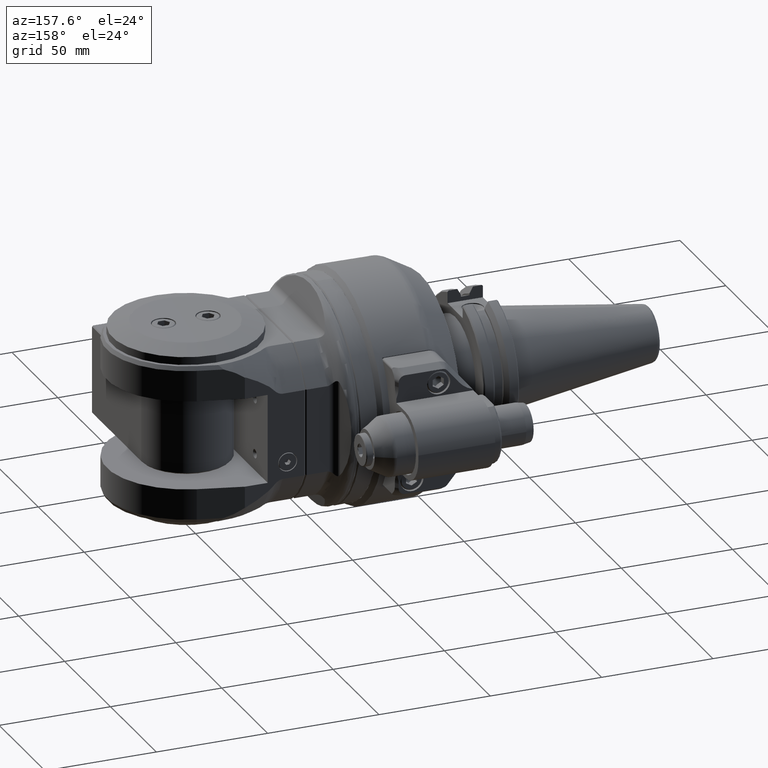
[diagram: clean part render]
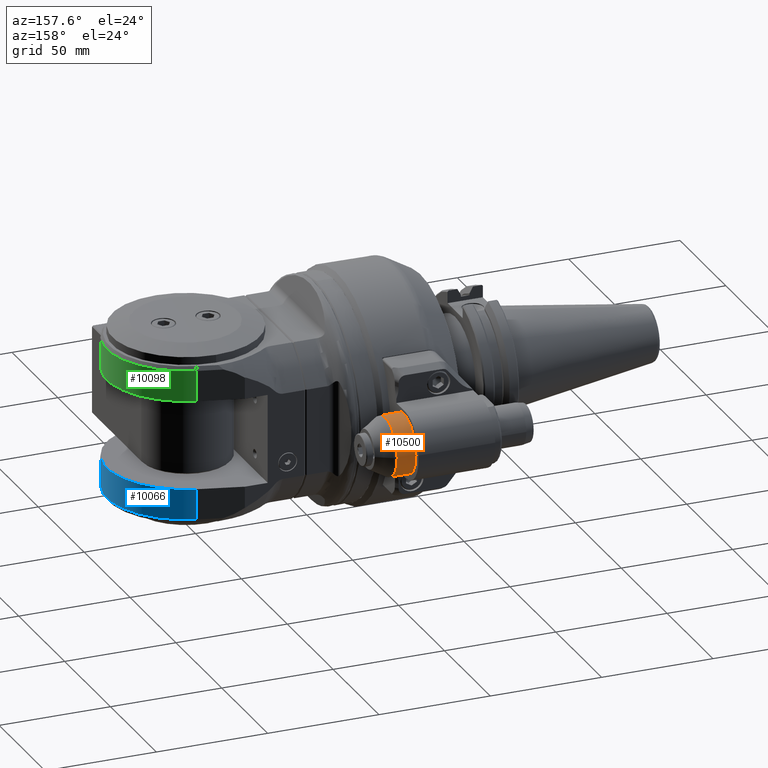
[diagram: same view with three faces highlighted in distinct colors, each labeled with its STEP entity id]
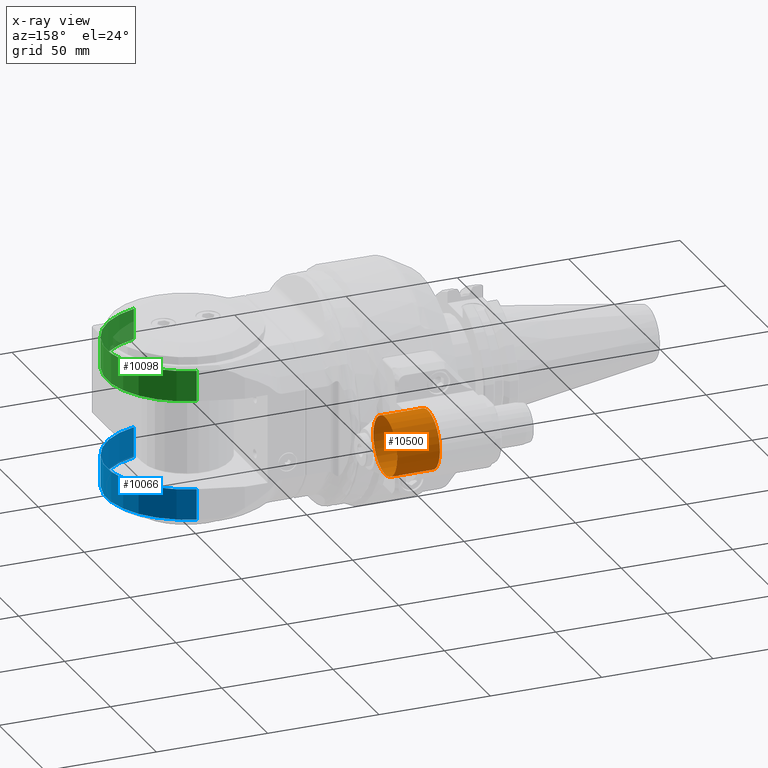
[diagram: x-ray of the same camera — body ghosted, the three highlighted faces saturated]
A machine part, auxiliary view with three faces highlighted in distinct colors.
The next image is the same camera in x-ray (body ghosted, the three faces saturated) — at least one of them is partly hidden behind the body in this view.
Their STEP definitions:

[orange] entity #10500 — the highlighted cylindrical surface (bore or boss wall) has radius 13 mm, axis along (1, 0, 0).
#174=CYLINDRICAL_SURFACE('',#11544,13.);
#813=CIRCLE('',#11543,13.);
#814=CIRCLE('',#11545,13.);
#815=CIRCLE('',#11546,13.);
#1417=FACE_OUTER_BOUND('',#2118,.T.);
#2118=EDGE_LOOP('',(#8994,#8995,#8996,#8997,#8998));
#2863=LINE('',#18437,#3580);
#3580=VECTOR('',#14072,13.);
#4849=VERTEX_POINT('',#18430);
#4850=VERTEX_POINT('',#18433);
#4851=VERTEX_POINT('',#18434);
#6266=EDGE_CURVE('',#4849,#4849,#813,.T.);
#6267=EDGE_CURVE('',#4850,#4851,#814,.T.);
#6268=EDGE_CURVE('',#4851,#4850,#815,.T.);
#6269=EDGE_CURVE('',#4851,#4849,#2863,.T.);
#8994=ORIENTED_EDGE('',*,*,#6267,.F.);
#8995=ORIENTED_EDGE('',*,*,#6268,.F.);
#8996=ORIENTED_EDGE('',*,*,#6269,.T.);
#8997=ORIENTED_EDGE('',*,*,#6266,.F.);
#8998=ORIENTED_EDGE('',*,*,#6269,.F.);
#10500=ADVANCED_FACE('',(#1417),#174,.T.);
#11543=AXIS2_PLACEMENT_3D('',#18431,#14064,#14065);
#11544=AXIS2_PLACEMENT_3D('',#18432,#14066,#14067);
#11545=AXIS2_PLACEMENT_3D('',#18435,#14068,#14069);
#11546=AXIS2_PLACEMENT_3D('',#18436,#14070,#14071);
#14064=DIRECTION('center_axis',(-1.,0.,0.));
#14065=DIRECTION('ref_axis',(0.,1.,0.));
#14066=DIRECTION('center_axis',(1.,0.,0.));
#14067=DIRECTION('ref_axis',(0.,1.,0.));
#14068=DIRECTION('center_axis',(1.,0.,0.));
#14069=DIRECTION('ref_axis',(0.,-1.,0.));
#14070=DIRECTION('center_axis',(1.,0.,0.));
#14071=DIRECTION('ref_axis',(0.,-1.,0.));
#14072=DIRECTION('',(-1.,0.,0.));
#18430=CARTESIAN_POINT('',(-28.,52.,-1.59204083889156E-15));
#18431=CARTESIAN_POINT('Origin',(-28.,65.,0.));
#18432=CARTESIAN_POINT('Origin',(-17.,65.,0.));
#18433=CARTESIAN_POINT('',(-8.803847577293,78.,0.));
#18434=CARTESIAN_POINT('',(-8.803847577293,52.,-1.59204083889156E-15));
#18435=CARTESIAN_POINT('Origin',(-8.803847577293,65.,0.));
#18436=CARTESIAN_POINT('Origin',(-8.803847577293,65.,0.));
#18437=CARTESIAN_POINT('',(-17.,52.,-1.59204083889156E-15));

[blue] entity #10066 — the highlighted cylindrical surface (partial cylindrical patch) has radius 35.5 mm, axis along (-0, 0, -1).
#75=CYLINDRICAL_SURFACE('',#10795,35.5);
#503=CIRCLE('',#10771,35.5);
#506=CIRCLE('',#10782,35.5);
#983=FACE_OUTER_BOUND('',#1621,.T.);
#1621=EDGE_LOOP('',(#6888,#6889,#6890,#6891));
#2370=LINE('',#15292,#3087);
#2375=LINE('',#15305,#3092);
#3087=VECTOR('',#12047,13.76794919243);
#3092=VECTOR('',#12062,13.76794919243);
#4199=VERTEX_POINT('',#15274);
#4200=VERTEX_POINT('',#15276);
#4203=VERTEX_POINT('',#15291);
#4204=VERTEX_POINT('',#15295);
#5246=EDGE_CURVE('',#4200,#4199,#503,.T.);
#5254=EDGE_CURVE('',#4203,#4200,#2370,.T.);
#5258=EDGE_CURVE('',#4203,#4204,#506,.T.);
#5262=EDGE_CURVE('',#4199,#4204,#2375,.T.);
#6888=ORIENTED_EDGE('',*,*,#5246,.T.);
#6889=ORIENTED_EDGE('',*,*,#5262,.T.);
#6890=ORIENTED_EDGE('',*,*,#5258,.F.);
#6891=ORIENTED_EDGE('',*,*,#5254,.T.);
#10066=ADVANCED_FACE('',(#983),#75,.T.);
#10771=AXIS2_PLACEMENT_3D('',#15277,#12025,#12026);
#10782=AXIS2_PLACEMENT_3D('',#15298,#12053,#12054);
#10795=AXIS2_PLACEMENT_3D('',#15315,#12081,#12082);
#12025=DIRECTION('center_axis',(1.,0.,0.));
#12026=DIRECTION('ref_axis',(0.,-0.258819045102493,0.965925826289076));
#12047=DIRECTION('',(-1.,1.754687838994E-14,0.));
#12053=DIRECTION('center_axis',(1.,0.,0.));
#12054=DIRECTION('ref_axis',(0.,-0.258819045102493,0.965925826289076));
#12062=DIRECTION('',(1.,0.,0.));
#12081=DIRECTION('center_axis',(-1.,0.,0.));
#12082=DIRECTION('ref_axis',(0.,0.,1.));
#15274=CARTESIAN_POINT('',(-33.76794919243,-9.18807610109999,-34.29036683326));
#15276=CARTESIAN_POINT('',(-33.76794919243,-9.18807610109999,34.29036683326));
#15277=CARTESIAN_POINT('Origin',(-33.76794919243,0.,0.));
#15291=CARTESIAN_POINT('',(-20.,-9.18807610109999,34.29036683326));
#15292=CARTESIAN_POINT('',(-20.,-9.18807610109999,34.29036683326));
#15295=CARTESIAN_POINT('',(-20.,-9.18807610109999,-34.29036683326));
#15298=CARTESIAN_POINT('Origin',(-20.,0.,0.));
#15305=CARTESIAN_POINT('',(-33.76794919243,-9.18807610109999,-34.29036683326));
#15315=CARTESIAN_POINT('Origin',(51.43760889292,0.,0.));

[green] entity #10098 — the highlighted cylindrical surface (partial cylindrical patch) has radius 35.5 mm, axis along (-0, 0, -1).
#82=CYLINDRICAL_SURFACE('',#10851,35.5);
#498=CIRCLE('',#10759,35.5);
#530=CIRCLE('',#10850,35.5);
#1015=FACE_OUTER_BOUND('',#1655,.T.);
#1655=EDGE_LOOP('',(#7030,#7031,#7032,#7033));
#2349=LINE('',#15131,#3066);
#2355=LINE('',#15145,#3072);
#3066=VECTOR('',#11980,13.76794919243);
#3072=VECTOR('',#11992,13.76794919243);
#4160=VERTEX_POINT('',#15128);
#4161=VERTEX_POINT('',#15130);
#4162=VERTEX_POINT('',#15134);
#4166=VERTEX_POINT('',#15144);
#5200=EDGE_CURVE('',#4161,#4160,#2349,.T.);
#5205=EDGE_CURVE('',#4161,#4162,#498,.T.);
#5207=EDGE_CURVE('',#4166,#4162,#2355,.T.);
#5331=EDGE_CURVE('',#4160,#4166,#530,.T.);
#7030=ORIENTED_EDGE('',*,*,#5331,.T.);
#7031=ORIENTED_EDGE('',*,*,#5207,.T.);
#7032=ORIENTED_EDGE('',*,*,#5205,.F.);
#7033=ORIENTED_EDGE('',*,*,#5200,.T.);
#10098=ADVANCED_FACE('',(#1015),#82,.T.);
#10759=AXIS2_PLACEMENT_3D('',#15140,#11987,#11988);
#10850=AXIS2_PLACEMENT_3D('',#15557,#12210,#12211);
#10851=AXIS2_PLACEMENT_3D('',#15559,#12213,#12214);
#11980=DIRECTION('',(1.,1.754687838994E-14,0.));
#11987=DIRECTION('center_axis',(-1.,0.,0.));
#11988=DIRECTION('ref_axis',(0.,-0.258819045102493,-0.965925826289076));
#11992=DIRECTION('',(-1.,0.,0.));
#12210=DIRECTION('center_axis',(-1.,0.,0.));
#12211=DIRECTION('ref_axis',(0.,-0.258819045102493,-0.965925826289076));
#12213=DIRECTION('center_axis',(-1.,0.,0.));
#12214=DIRECTION('ref_axis',(0.,0.,1.));
#15128=CARTESIAN_POINT('',(33.76794919243,-9.18807610109999,-34.29036683326));
#15130=CARTESIAN_POINT('',(20.,-9.18807610109999,-34.29036683326));
#15131=CARTESIAN_POINT('',(20.,-9.18807610109999,-34.29036683326));
#15134=CARTESIAN_POINT('',(20.,-9.18807610109999,34.29036683326));
#15140=CARTESIAN_POINT('Origin',(20.,0.,0.));
#15144=CARTESIAN_POINT('',(33.76794919243,-9.18807610109999,34.29036683326));
#15145=CARTESIAN_POINT('',(33.76794919243,-9.18807610109999,34.29036683326));
#15557=CARTESIAN_POINT('Origin',(33.76794919243,0.,0.));
#15559=CARTESIAN_POINT('Origin',(51.43760889292,0.,0.));